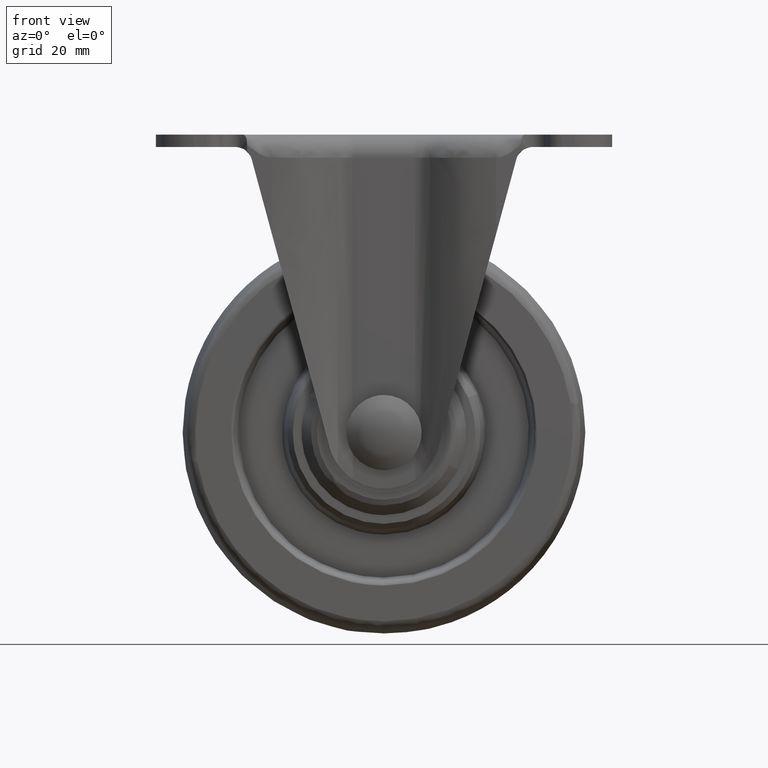
[diagram: clean part render]
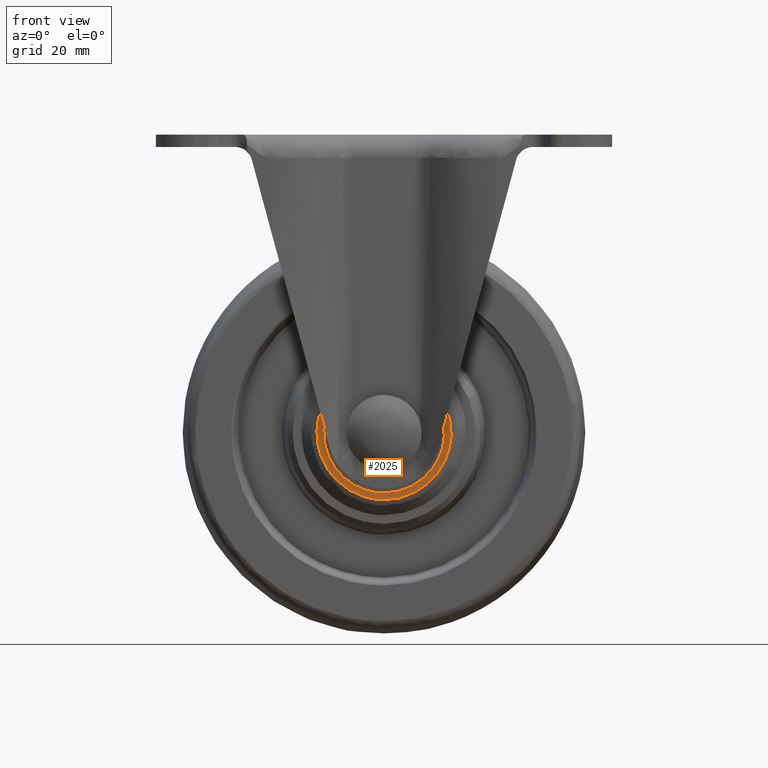
[diagram: same view with one face highlighted and labeled with its STEP entity id]
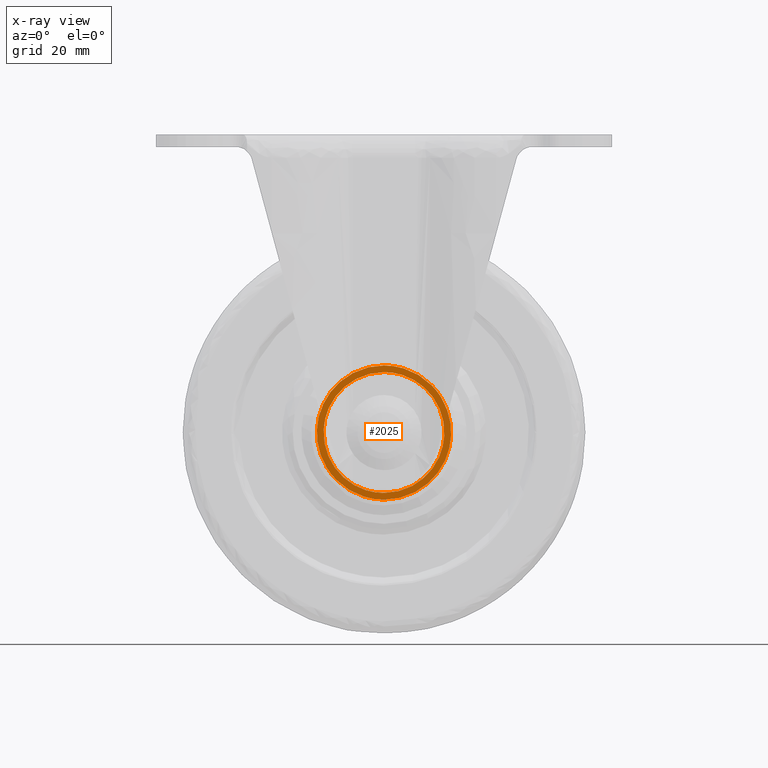
[diagram: x-ray of the same camera — body ghosted, the highlighted face saturated]
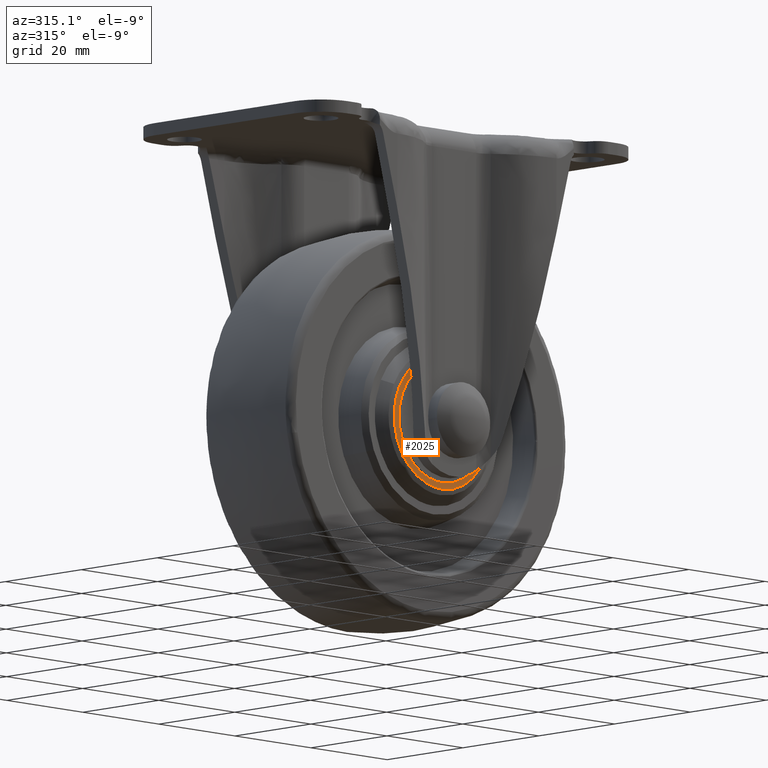
[diagram: same view with one face highlighted and labeled with its STEP entity id]
A machine part, front view. The second image highlights one B-rep face of the part: STEP entity #2025.
The next image is the same camera in x-ray: the body ghosted, the highlighted face saturated — about 0% of this face is hidden behind the body in this view.
A second angle (auxiliary view) of the same face is appended — the face is thin or edge-on in the first view.
In plain terms, the highlighted face is a freeform B-spline surface patch.
Its self-contained STEP definition (entity closure, byte-faithful):
#1818=CARTESIAN_POINT('',(8.894195723650650,-14.750000000000000,-46.716875615964838));
#1819=VERTEX_POINT('',#1818);
#1833=CARTESIAN_POINT('',(0.0,-14.750000000000000,-67.999999656440338));
#1834=VERTEX_POINT('',#1833);
#1835=CARTESIAN_POINT('',(0.0,-14.750000000000000,-67.999999656440338));
#1836=CARTESIAN_POINT('',(12.499999657064949,-14.750000000000005,-67.999999655823530));
#1837=CARTESIAN_POINT('',(12.499999658559600,-14.750000000000000,-55.499999997907203));
#1838=CARTESIAN_POINT('',(12.499999659173211,-14.750000000000000,-50.368278527489856));
#1839=CARTESIAN_POINT('',(8.894195723650650,-14.750000000000005,-46.716875615964838));
#1847=(BOUNDED_CURVE()B_SPLINE_CURVE(2,(#1835,#1836,#1837,#1838,#1839),.UNSPECIFIED.,.F.,.U.)B_SPLINE_CURVE_WITH_KNOTS((3,2,3),(0.0,0.250000000000000,0.374051937432024),.UNSPECIFIED.)CURVE()GEOMETRIC_REPRESENTATION_ITEM()RATIONAL_B_SPLINE_CURVE((1.0,0.707106781186548,1.0,0.854664114981957,0.853561814883004))REPRESENTATION_ITEM(''));
#1848=EDGE_CURVE('',#1834,#1819,#1847,.T.);
#1850=CARTESIAN_POINT('',(-8.894195723650654,-14.750000000000000,-64.283124384035148));
#1851=VERTEX_POINT('',#1850);
#1852=CARTESIAN_POINT('',(-8.894195723650654,-14.750000000000005,-64.283124384035133));
#1853=CARTESIAN_POINT('',(-5.223737045763484,-14.749999999999996,-67.999999657916320));
#1854=CARTESIAN_POINT('',(0.0,-14.750000000000000,-67.999999656440338));
#1862=(BOUNDED_CURVE()B_SPLINE_CURVE(2,(#1852,#1853,#1854),.UNSPECIFIED.,.F.,.U.)B_SPLINE_CURVE_WITH_KNOTS((3,3),(0.874051937432024,1.0),.UNSPECIFIED.)CURVE()GEOMETRIC_REPRESENTATION_ITEM()RATIONAL_B_SPLINE_CURVE((0.853561814883004,0.852442666204590,1.0))REPRESENTATION_ITEM(''));
#1863=EDGE_CURVE('',#1851,#1834,#1862,.T.);
#1913=CARTESIAN_POINT('',(0.0,-14.750000000000000,-43.000000343559662));
#1914=VERTEX_POINT('',#1913);
#1915=CARTESIAN_POINT('',(0.0,-14.750000000000000,-43.000000343559662));
#1916=CARTESIAN_POINT('',(-12.499999657064949,-14.750000000000005,-43.000000344176470));
#1917=CARTESIAN_POINT('',(-12.499999658559600,-14.750000000000000,-55.500000002092790));
#1918=CARTESIAN_POINT('',(-12.499999659173209,-14.749999999999998,-60.631721472510144));
#1919=CARTESIAN_POINT('',(-8.894195723650654,-14.750000000000005,-64.283124384035133));
#1927=(BOUNDED_CURVE()B_SPLINE_CURVE(2,(#1915,#1916,#1917,#1918,#1919),.UNSPECIFIED.,.F.,.U.)B_SPLINE_CURVE_WITH_KNOTS((3,2,3),(0.500000000000000,0.750000000000000,0.874051937432024),.UNSPECIFIED.)CURVE()GEOMETRIC_REPRESENTATION_ITEM()RATIONAL_B_SPLINE_CURVE((1.0,0.707106781186548,1.0,0.854664114981957,0.853561814883004))REPRESENTATION_ITEM(''));
#1928=EDGE_CURVE('',#1914,#1851,#1927,.T.);
#1930=CARTESIAN_POINT('',(8.894195723650650,-14.750000000000005,-46.716875615964838));
#1931=CARTESIAN_POINT('',(5.223737045763479,-14.749999999999995,-43.000000342083666));
#1932=CARTESIAN_POINT('',(0.0,-14.750000000000000,-43.000000343559662));
#1940=(BOUNDED_CURVE()B_SPLINE_CURVE(2,(#1930,#1931,#1932),.UNSPECIFIED.,.F.,.U.)B_SPLINE_CURVE_WITH_KNOTS((3,3),(0.374051937432024,0.500000000000000),.UNSPECIFIED.)CURVE()GEOMETRIC_REPRESENTATION_ITEM()RATIONAL_B_SPLINE_CURVE((0.853561814883004,0.852442666204590,1.0))REPRESENTATION_ITEM(''));
#1941=EDGE_CURVE('',#1819,#1914,#1940,.T.);
#1948=CARTESIAN_POINT('',(-13.748629293994449,-14.750000000000000,-69.248749573663886));
#1949=CARTESIAN_POINT('',(-13.748629293994449,-14.750000000000000,-41.751249755783888));
#1950=CARTESIAN_POINT('',(13.748629293994460,-14.750000000000000,-69.248749573663886));
#1951=CARTESIAN_POINT('',(13.748629293994460,-14.750000000000000,-41.751249755783888));
#1952=B_SPLINE_SURFACE_WITH_KNOTS('',1,1,((#1948,#1950),(#1949,#1951)),.UNSPECIFIED.,.F.,.F.,.U.,(2,2),(2,2),(0.0,27.497499817880001),(0.0,27.497258587988910),.UNSPECIFIED.);
#1953=ORIENTED_EDGE('',*,*,#1848,.T.);
#1954=ORIENTED_EDGE('',*,*,#1941,.T.);
#1955=ORIENTED_EDGE('',*,*,#1928,.T.);
#1956=ORIENTED_EDGE('',*,*,#1863,.T.);
#1957=EDGE_LOOP('',(#1953,#1954,#1955,#1956));
#1958=FACE_OUTER_BOUND('',#1957,.T.);
#1959=CARTESIAN_POINT('',(0.0,-14.750000000000000,-44.250000000000000));
#1960=VERTEX_POINT('',#1959);
#1961=CARTESIAN_POINT('',(-11.229016482242571,-14.750000000000000,-54.813203930176762));
#1962=VERTEX_POINT('',#1961);
#1963=CARTESIAN_POINT('',(0.0,-14.750000000000000,-44.250000000000000));
#1964=CARTESIAN_POINT('',(-10.582943252636086,-14.749999999999995,-44.250000000000000));
#1965=CARTESIAN_POINT('',(-11.229016482242571,-14.749999999999998,-54.813203930176755));
#1973=(BOUNDED_CURVE()B_SPLINE_CURVE(2,(#1963,#1964,#1965),.UNSPECIFIED.,.F.,.U.)B_SPLINE_CURVE_WITH_KNOTS((3,3),(0.500000000000000,0.739332962241106),.UNSPECIFIED.)CURVE()GEOMETRIC_REPRESENTATION_ITEM()RATIONAL_B_SPLINE_CURVE((1.0,0.719603993284176,0.976072041671354))REPRESENTATION_ITEM(''));
#1974=EDGE_CURVE('',#1960,#1962,#1973,.T.);
#1975=ORIENTED_EDGE('',*,*,#1974,.F.);
#1976=CARTESIAN_POINT('',(11.229016482242571,-14.750000000000000,-56.186796069823238));
#1977=VERTEX_POINT('',#1976);
#1978=CARTESIAN_POINT('',(11.229016482242574,-14.750000000000002,-56.186796069823238));
#1979=CARTESIAN_POINT('',(11.250000000000004,-14.750000000000004,-55.843718587137253));
#1980=CARTESIAN_POINT('',(11.250000000000000,-14.750000000000000,-55.500000000000000));
#1981=CARTESIAN_POINT('',(11.249999999999998,-14.750000000000005,-44.250000000000014));
#1982=CARTESIAN_POINT('',(0.0,-14.750000000000000,-44.250000000000000));
#1990=(BOUNDED_CURVE()B_SPLINE_CURVE(2,(#1978,#1979,#1980,#1981,#1982),.UNSPECIFIED.,.F.,.U.)B_SPLINE_CURVE_WITH_KNOTS((3,2,3),(0.239332962241106,0.250000000000000,0.500000000000000),.UNSPECIFIED.)CURVE()GEOMETRIC_REPRESENTATION_ITEM()RATIONAL_B_SPLINE_CURVE((0.976072041671354,0.987502787902372,1.0,0.707106781186548,1.0))REPRESENTATION_ITEM(''));
#1991=EDGE_CURVE('',#1977,#1960,#1990,.T.);
#1992=ORIENTED_EDGE('',*,*,#1991,.F.);
#1993=CARTESIAN_POINT('',(0.0,-14.750000000000000,-66.750000000000000));
#1994=VERTEX_POINT('',#1993);
#1995=CARTESIAN_POINT('',(0.0,-14.750000000000000,-66.750000000000000));
#1996=CARTESIAN_POINT('',(10.582943252636095,-14.749999999999998,-66.750000000000000));
#1997=CARTESIAN_POINT('',(11.229016482242576,-14.750000000000005,-56.186796069823245));
#2005=(BOUNDED_CURVE()B_SPLINE_CURVE(2,(#1995,#1996,#1997),.UNSPECIFIED.,.F.,.U.)B_SPLINE_CURVE_WITH_KNOTS((3,3),(0.0,0.239332962241106),.UNSPECIFIED.)CURVE()GEOMETRIC_REPRESENTATION_ITEM()RATIONAL_B_SPLINE_CURVE((1.0,0.719603993284176,0.976072041671354))REPRESENTATION_ITEM(''));
#2006=EDGE_CURVE('',#1994,#1977,#2005,.T.);
#2007=ORIENTED_EDGE('',*,*,#2006,.F.);
#2008=CARTESIAN_POINT('',(-11.229016482242571,-14.749999999999998,-54.813203930176755));
#2009=CARTESIAN_POINT('',(-11.249999999999998,-14.749999999999996,-55.156281412862747));
#2010=CARTESIAN_POINT('',(-11.250000000000000,-14.750000000000000,-55.500000000000000));
#2011=CARTESIAN_POINT('',(-11.249999999999998,-14.750000000000005,-66.750000000000000));
#2012=CARTESIAN_POINT('',(0.0,-14.750000000000000,-66.750000000000000));
#2020=(BOUNDED_CURVE()B_SPLINE_CURVE(2,(#2008,#2009,#2010,#2011,#2012),.UNSPECIFIED.,.F.,.U.)B_SPLINE_CURVE_WITH_KNOTS((3,2,3),(0.739332962241106,0.750000000000000,1.0),.UNSPECIFIED.)CURVE()GEOMETRIC_REPRESENTATION_ITEM()RATIONAL_B_SPLINE_CURVE((0.976072041671354,0.987502787902372,1.0,0.707106781186548,1.0))REPRESENTATION_ITEM(''));
#2021=EDGE_CURVE('',#1962,#1994,#2020,.T.);
#2022=ORIENTED_EDGE('',*,*,#2021,.F.);
#2023=EDGE_LOOP('',(#1975,#1992,#2007,#2022));
#2024=FACE_BOUND('',#2023,.T.);
#2025=ADVANCED_FACE('',(#1958,#2024),#1952,.F.);